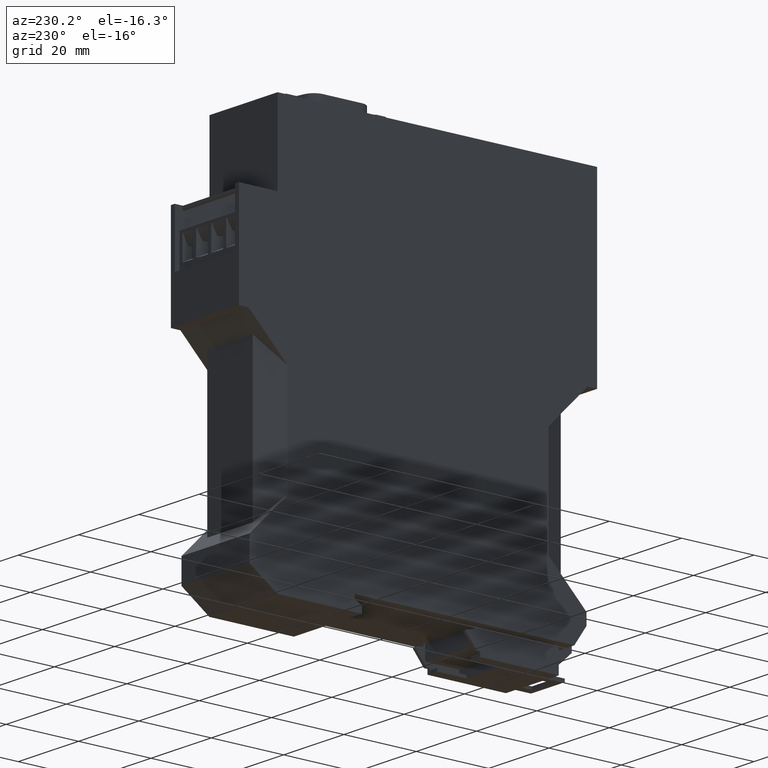
[diagram: clean part render]
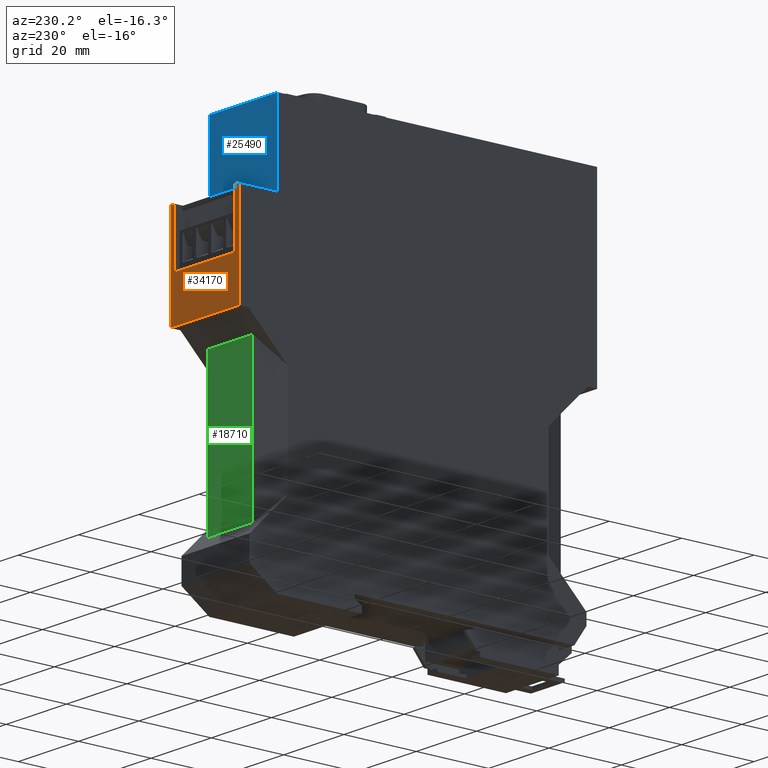
[diagram: same view with three faces highlighted in distinct colors, each labeled with its STEP entity id]
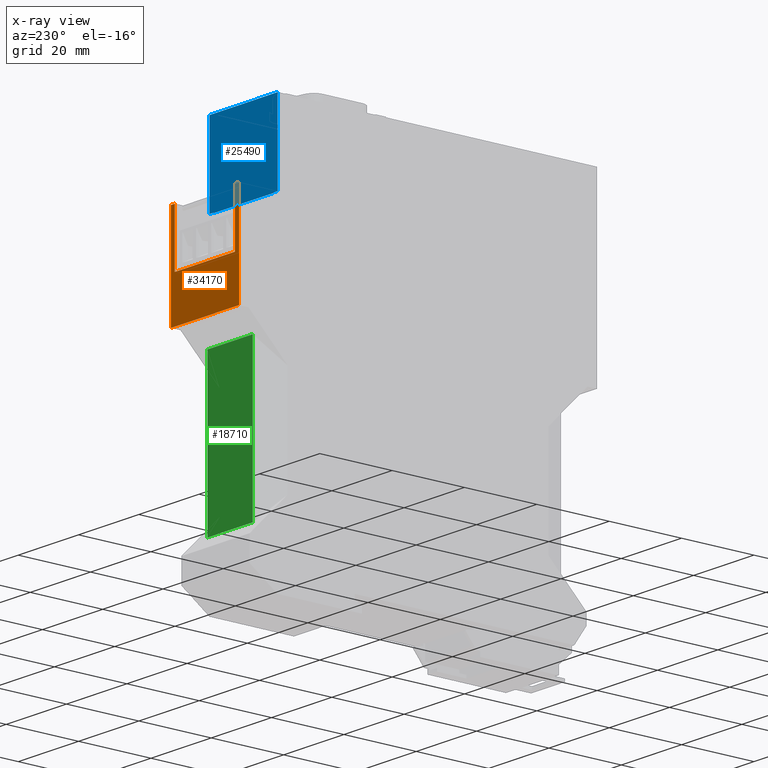
[diagram: x-ray of the same camera — body ghosted, the three highlighted faces saturated]
A machine part, auxiliary view with three faces highlighted in distinct colors.
The next image is the same camera in x-ray (body ghosted, the three faces saturated) — at least one of them is partly hidden behind the body in this view.
Their STEP definitions:

[orange] entity #34170 — the highlighted planar face has unit normal (0, 1, 0).
#920=CARTESIAN_POINT('',(32.0000000000386,57.9000000000013,0.));
#930=VERTEX_POINT('',#920);
#960=CARTESIAN_POINT('',(32.0000000000633,24.,0.));
#970=DIRECTION('',(7.27300000002176E-13,-1.,-0.));
#980=VECTOR('',#970,1.);
#990=LINE('',#960,#980);
#1000=CARTESIAN_POINT('',(32.0000000000188,85.1000000000079,0.));
#1010=VERTEX_POINT('',#1000);
#1020=EDGE_CURVE('',#1010,#930,#990,.T.);
#2750=CARTESIAN_POINT('',(31.9999999999779,85.1000000000079,22.6));
#2760=VERTEX_POINT('',#2750);
#2790=CARTESIAN_POINT('',(32.0000000000223,24.,22.6));
#2800=DIRECTION('',(-7.27300000002176E-13,1.,0.));
#2810=VECTOR('',#2800,1.);
#2820=LINE('',#2790,#2810);
#2830=CARTESIAN_POINT('',(31.9999999999977,57.9000000000013,22.6));
#2840=VERTEX_POINT('',#2830);
#2850=EDGE_CURVE('',#2840,#2760,#2820,.T.);
#17640=CARTESIAN_POINT('',(31.9999999999912,70.0000000000079,
21.3000000001629));
#17650=VERTEX_POINT('',#17640);
#17800=CARTESIAN_POINT('',(32.0000000000274,70.0000000000079,
1.30000000017318));
#17810=VERTEX_POINT('',#17800);
#17840=CARTESIAN_POINT('',(32.0000000000298,70.0000000000079,0.));
#17850=DIRECTION('',(1.81046150293795E-12,-2.21416216699985E-24,-1.));
#17860=VECTOR('',#17850,1.);
#17870=LINE('',#17840,#17860);
#17880=EDGE_CURVE('',#17650,#17810,#17870,.T.);
#18130=CARTESIAN_POINT('',(32.0000000000386,57.9000000000013,0.));
#18140=DIRECTION('',(1.81046150293795E-12,1.79027249274477E-25,-1.));
#18150=VECTOR('',#18140,1.);
#18160=LINE('',#18130,#18150);
#18170=EDGE_CURVE('',#2840,#930,#18160,.T.);
#21420=CARTESIAN_POINT('',(32.0000000000188,85.1000000000079,0.));
#21430=DIRECTION('',(-1.81046150293795E-12,2.21416216699985E-24,1.));
#21440=VECTOR('',#21430,1.);
#21450=LINE('',#21420,#21440);
#21460=CARTESIAN_POINT('',(32.0000000000165,85.1000000000079,
1.30000000017318));
#21470=VERTEX_POINT('',#21460);
#21480=EDGE_CURVE('',#1010,#21470,#21450,.T.);
#33660=CARTESIAN_POINT('',(32.0000000000188,85.1000000000079,0.));
#33670=DIRECTION('',(-1.81046150293795E-12,2.21416216699985E-24,1.));
#33680=VECTOR('',#33670,1.);
#33690=LINE('',#33660,#33680);
#33700=CARTESIAN_POINT('',(31.9999999999803,85.1000000000079,
21.3000000001629));
#33710=VERTEX_POINT('',#33700);
#33720=EDGE_CURVE('',#33710,#2760,#33690,.T.);
#33920=CARTESIAN_POINT('',(32.0000000000843,-7.9999999999573,
1.25000000017277));
#33930=DIRECTION('',(1.,7.27300000002176E-13,1.81046150293795E-12));
#33940=DIRECTION('',(1.81046150293795E-12,0.,-1.));
#33950=AXIS2_PLACEMENT_3D('',#33920,#33930,#33940);
#33960=PLANE('',#33950);
#33970=CARTESIAN_POINT('',(32.0000000000247,24.,21.3000000001629));
#33980=DIRECTION('',(-7.27300000002176E-13,1.,-2.21416216699985E-24));
#33990=VECTOR('',#33980,1.);
#34000=LINE('',#33970,#33990);
#34010=EDGE_CURVE('',#17650,#33710,#34000,.T.);
#34020=ORIENTED_EDGE('',*,*,#34010,.T.);
#34030=ORIENTED_EDGE('',*,*,#17880,.F.);
#34040=CARTESIAN_POINT('',(32.0000000000609,24.,1.30000000017318));
#34050=DIRECTION('',(7.27300000002176E-13,-1.,3.53066373273061E-24));
#34060=VECTOR('',#34050,1.);
#34070=LINE('',#34040,#34060);
#34080=EDGE_CURVE('',#21470,#17810,#34070,.T.);
#34090=ORIENTED_EDGE('',*,*,#34080,.T.);
#34100=ORIENTED_EDGE('',*,*,#21480,.T.);
#34110=ORIENTED_EDGE('',*,*,#1020,.F.);
#34120=ORIENTED_EDGE('',*,*,#18170,.T.);
#34130=ORIENTED_EDGE('',*,*,#2850,.F.);
#34140=ORIENTED_EDGE('',*,*,#33720,.T.);
#34150=EDGE_LOOP('',(#34140,#34130,#34120,#34110,#34100,#34090,#34030,
#34020));
#34160=FACE_OUTER_BOUND('',#34150,.T.);
#34170=ADVANCED_FACE('',(#34160),#33960,.T.);

[blue] entity #25490 — the highlighted planar face has unit normal (0, 1, 0).
#1080=CARTESIAN_POINT('',(21.3000000000241,85.1000000000079,0.));
#1090=VERTEX_POINT('',#1080);
#1120=CARTESIAN_POINT('',(21.3000000000241,24.,0.));
#1130=DIRECTION('',(-2.17588503380295E-24,1.,0.));
#1140=VECTOR('',#1130,1.);
#1150=LINE('',#1120,#1140);
#1160=CARTESIAN_POINT('',(21.3000000000241,106.999999999943,0.));
#1170=VERTEX_POINT('',#1160);
#1180=EDGE_CURVE('',#1090,#1170,#1150,.T.);
#2590=CARTESIAN_POINT('',(21.2999999999832,106.999999999943,22.6));
#2600=VERTEX_POINT('',#2590);
#2630=CARTESIAN_POINT('',(21.3000000000036,24.,22.6));
#2640=DIRECTION('',(2.17588503380295E-24,-1.,-0.));
#2650=VECTOR('',#2640,1.);
#2660=LINE('',#2630,#2650);
#2670=CARTESIAN_POINT('',(21.2999999999832,85.1000000000079,22.6));
#2680=VERTEX_POINT('',#2670);
#2690=EDGE_CURVE('',#2600,#2680,#2660,.T.);
#21330=CARTESIAN_POINT('',(21.3000000000241,85.1000000000079,0.));
#21340=DIRECTION('',(-1.81046150293795E-12,2.21416216699985E-24,1.));
#21350=VECTOR('',#21340,1.);
#21360=LINE('',#21330,#21350);
#21370=CARTESIAN_POINT('',(21.3000000000217,85.1000000000079,
1.30000000015381));
#21380=VERTEX_POINT('',#21370);
#21390=EDGE_CURVE('',#1090,#21380,#21360,.T.);
#24940=CARTESIAN_POINT('',(21.3000000000241,106.999999999943,0.));
#24950=DIRECTION('',(-1.81046150293795E-12,2.21416216699985E-24,1.));
#24960=VECTOR('',#24950,1.);
#24970=LINE('',#24940,#24960);
#24980=EDGE_CURVE('',#1170,#2600,#24970,.T.);
#25120=CARTESIAN_POINT('',(21.300000000011,99.421597788003,
7.24395756602027));
#25130=DIRECTION('',(1.,2.17588503380295E-24,1.81046150293795E-12));
#25140=DIRECTION('',(1.81046150293795E-12,0.,-1.));
#25150=AXIS2_PLACEMENT_3D('',#25120,#25130,#25140);
#25160=PLANE('',#25150);
#25170=ORIENTED_EDGE('',*,*,#1180,.T.);
#25180=ORIENTED_EDGE('',*,*,#21390,.F.);
#25190=CARTESIAN_POINT('',(21.3000000000217,24.,1.30000000015381));
#25200=DIRECTION('',(2.17588503379894E-24,-1.,2.21419669665522E-24));
#25210=VECTOR('',#25200,1.);
#25220=LINE('',#25190,#25210);
#25230=CARTESIAN_POINT('',(21.3000000000217,85.0000000000079,
1.30000000015381));
#25240=VERTEX_POINT('',#25230);
#25250=EDGE_CURVE('',#21380,#25240,#25220,.T.);
#25260=ORIENTED_EDGE('',*,*,#25250,.F.);
#25270=CARTESIAN_POINT('',(21.3000000000241,85.0000000000079,0.));
#25280=DIRECTION('',(1.81046150293795E-12,0.,-1.));
#25290=VECTOR('',#25280,1.);
#25300=LINE('',#25270,#25290);
#25310=CARTESIAN_POINT('',(21.2999999999855,85.0000000000079,
21.3000000001629));
#25320=VERTEX_POINT('',#25310);
#25330=EDGE_CURVE('',#25320,#25240,#25300,.T.);
#25340=ORIENTED_EDGE('',*,*,#25330,.T.);
#25350=CARTESIAN_POINT('',(21.2999999999855,24.,21.3000000001629));
#25360=DIRECTION('',(-2.17588503379894E-24,1.,-2.21419669665522E-24));
#25370=VECTOR('',#25360,1.);
#25380=LINE('',#25350,#25370);
#25390=CARTESIAN_POINT('',(21.2999999999855,85.1000000000079,
21.3000000001629));
#25400=VERTEX_POINT('',#25390);
#25410=EDGE_CURVE('',#25320,#25400,#25380,.T.);
#25420=ORIENTED_EDGE('',*,*,#25410,.F.);
#25430=EDGE_CURVE('',#25400,#2680,#21360,.T.);
#25440=ORIENTED_EDGE('',*,*,#25430,.F.);
#25450=ORIENTED_EDGE('',*,*,#2690,.T.);
#25460=ORIENTED_EDGE('',*,*,#24980,.T.);
#25470=EDGE_LOOP('',(#25460,#25450,#25440,#25420,#25340,#25260,#25180,
#25170));
#25480=FACE_OUTER_BOUND('',#25470,.T.);
#25490=ADVANCED_FACE('',(#25480),#25160,.T.);

[green] entity #18710 — the highlighted planar face has unit normal (0, -1, -0).
#4680=CARTESIAN_POINT('',(25.0500000000874,12.0000000000026,
3.75277674973103));
#4690=VERTEX_POINT('',#4680);
#4720=CARTESIAN_POINT('',(25.0500000000873,24.,3.75277674973095));
#4730=DIRECTION('',(-6.60000000000277E-15,1.,-6.11991285341162E-15));
#4740=VECTOR('',#4730,1.);
#4750=LINE('',#4720,#4740);
#4760=CARTESIAN_POINT('',(25.0500000000871,53.599999999998,
3.75277674973077));
#4770=VERTEX_POINT('',#4760);
#4780=EDGE_CURVE('',#4690,#4770,#4750,.T.);
#5060=CARTESIAN_POINT('',(25.0500000000939,53.6000000000048,
18.8472232502124));
#5070=VERTEX_POINT('',#5060);
#5100=CARTESIAN_POINT('',(25.0500000000941,24.,18.8472232502123));
#5110=DIRECTION('',(-6.59999999999827E-15,1.,3.81051177665051E-15));
#5120=VECTOR('',#5110,1.);
#5130=LINE('',#5100,#5120);
#5140=CARTESIAN_POINT('',(25.0500000000942,11.9999999999957,
18.8472232502123));
#5150=VERTEX_POINT('',#5140);
#5160=EDGE_CURVE('',#5150,#5070,#5130,.T.);
#18360=CARTESIAN_POINT('',(25.0500000000854,53.5999999999963,0.));
#18370=DIRECTION('',(4.52799999999997E-13,4.52799999999993E-13,1.));
#18380=VECTOR('',#18370,1.);
#18390=LINE('',#18360,#18380);
#18400=EDGE_CURVE('',#4770,#5070,#18390,.T.);
#18550=CARTESIAN_POINT('',(25.0500000000904,68.5000000000004,
11.299999999981));
#18560=DIRECTION('',(-1.,-6.6E-15,4.528E-13));
#18570=DIRECTION('',(4.528E-13,0.,1.));
#18580=AXIS2_PLACEMENT_3D('',#18550,#18560,#18570);
#18590=PLANE('',#18580);
#18600=ORIENTED_EDGE('',*,*,#4780,.T.);
#18610=CARTESIAN_POINT('',(25.0500000000857,12.0000000000043,0.));
#18620=DIRECTION('',(-4.52800000000003E-13,4.52799999999919E-13,-1.));
#18630=VECTOR('',#18620,1.);
#18640=LINE('',#18610,#18630);
#18650=EDGE_CURVE('',#5150,#4690,#18640,.T.);
#18660=ORIENTED_EDGE('',*,*,#18650,.T.);
#18670=ORIENTED_EDGE('',*,*,#5160,.F.);
#18680=ORIENTED_EDGE('',*,*,#18400,.T.);
#18690=EDGE_LOOP('',(#18680,#18670,#18660,#18600));
#18700=FACE_OUTER_BOUND('',#18690,.T.);
#18710=ADVANCED_FACE('',(#18700),#18590,.F.);